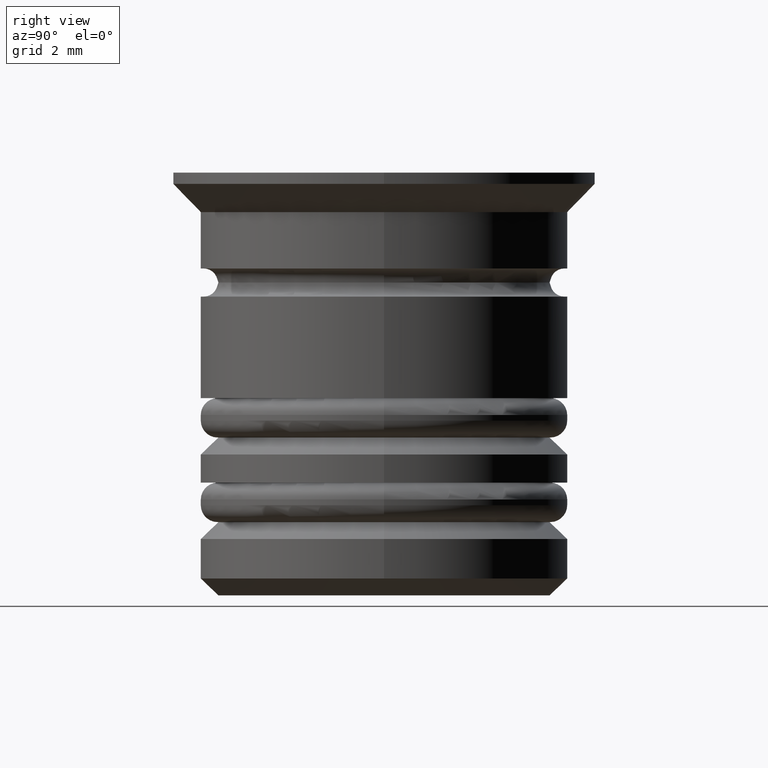
[diagram: clean part render]
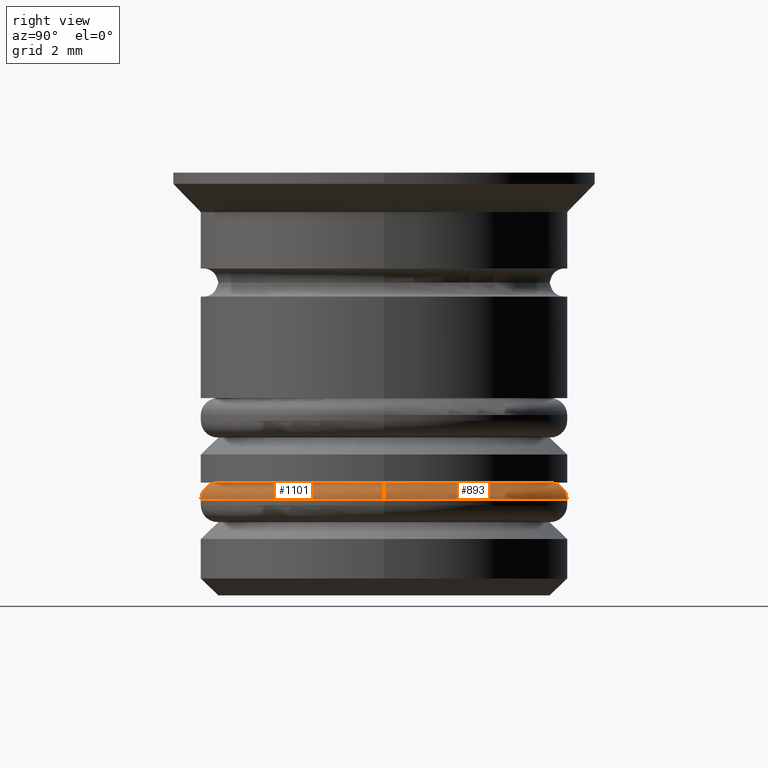
[diagram: same view with one multi-face feature highlighted, each face labeled with its STEP entity id]
A machine part, right view. The highlighted faces form ONE feature: a constant-radius fillet chain: 2 tangent blend faces with common blend radius 0.3 mm. The faces share edges in the B-rep.
Their STEP definitions:
[1] entity #893 (Torus):
#1 = VERTEX_POINT ( 'NONE', #342 ) ;
#23 = AXIS2_PLACEMENT_3D ( 'NONE', #771, #358, #1759 ) ;
#72 = CARTESIAN_POINT ( 'NONE',  ( -2.950000000000000178, 0.000000000000000000, -5.500000000000000000 ) ) ;
#93 = CARTESIAN_POINT ( 'NONE',  ( 0.000000000000000000, 0.000000000000000000, -5.799999999999999822 ) ) ;
#98 = ORIENTED_EDGE ( 'NONE', *, *, #273, .T. ) ;
#120 = CARTESIAN_POINT ( 'NONE',  ( 2.950000000000000178, 3.796405077356795411E-16, -5.500000000000000000 ) ) ;
#159 = ORIENTED_EDGE ( 'NONE', *, *, #257, .F. ) ;
#219 = VERTEX_POINT ( 'NONE', #72 ) ;
#231 = DIRECTION ( 'NONE',  ( -1.224646799147353207E-16, 1.000000000000000000, 0.000000000000000000 ) ) ;
#257 = EDGE_CURVE ( 'NONE', #1, #983, #1217, .T. ) ;
#273 = EDGE_CURVE ( 'NONE', #940, #983, #340, .T. ) ;
#340 = CIRCLE ( 'NONE', #1724, 0.2999999999999999334 ) ;
#342 = CARTESIAN_POINT ( 'NONE',  ( -3.250000000000000444, 3.980102097228898231E-16, -5.799999999999999822 ) ) ;
#358 = DIRECTION ( 'NONE',  ( -0.000000000000000000, -1.000000000000000000, -0.000000000000000000 ) ) ;
#387 = DIRECTION ( 'NONE',  ( 0.000000000000000000, 0.000000000000000000, -1.000000000000000000 ) ) ;
#417 = CIRCLE ( 'NONE', #1112, 2.950000000000000178 ) ;
#558 = CARTESIAN_POINT ( 'NONE',  ( 0.000000000000000000, 0.000000000000000000, -5.500000000000000000 ) ) ;
#594 = FACE_OUTER_BOUND ( 'NONE', #1001, .T. ) ;
#619 = AXIS2_PLACEMENT_3D ( 'NONE', #1480, #789, #1171 ) ;
#622 = CIRCLE ( 'NONE', #23, 0.2999999999999999334 ) ;
#726 = EDGE_CURVE ( 'NONE', #219, #1, #622, .T. ) ;
#771 = CARTESIAN_POINT ( 'NONE',  ( -2.950000000000000178, 0.000000000000000000, -5.799999999999999822 ) ) ;
#789 = DIRECTION ( 'NONE',  ( 0.000000000000000000, 0.000000000000000000, -1.000000000000000000 ) ) ;
#828 = CARTESIAN_POINT ( 'NONE',  ( 3.250000000000000444, 0.000000000000000000, -5.799999999999999822 ) ) ;
#893 = ADVANCED_FACE ( 'NONE', ( #594 ), #1492, .T. ) ;
#940 = VERTEX_POINT ( 'NONE', #120 ) ;
#983 = VERTEX_POINT ( 'NONE', #828 ) ;
#1001 = EDGE_LOOP ( 'NONE', ( #1276, #98, #159, #1403 ) ) ;
#1112 = AXIS2_PLACEMENT_3D ( 'NONE', #558, #1814, #1386 ) ;
#1152 = EDGE_CURVE ( 'NONE', #940, #219, #417, .T. ) ;
#1161 = AXIS2_PLACEMENT_3D ( 'NONE', #93, #387, #1526 ) ;
#1171 = DIRECTION ( 'NONE',  ( -1.000000000000000000, 0.000000000000000000, 0.000000000000000000 ) ) ;
#1217 = CIRCLE ( 'NONE', #619, 3.250000000000000444 ) ;
#1276 = ORIENTED_EDGE ( 'NONE', *, *, #1152, .F. ) ;
#1386 = DIRECTION ( 'NONE',  ( -1.000000000000000000, 0.000000000000000000, 0.000000000000000000 ) ) ;
#1403 = ORIENTED_EDGE ( 'NONE', *, *, #726, .F. ) ;
#1480 = CARTESIAN_POINT ( 'NONE',  ( 0.000000000000000000, 0.000000000000000000, -5.799999999999999822 ) ) ;
#1491 = CARTESIAN_POINT ( 'NONE',  ( 2.950000000000000178, 3.612708057484692097E-16, -5.799999999999999822 ) ) ;
#1492 = TOROIDAL_SURFACE ( 'NONE', #1161, 2.950000000000000178, 0.2999999999999999889 ) ;
#1526 = DIRECTION ( 'NONE',  ( -1.000000000000000000, 0.000000000000000000, 0.000000000000000000 ) ) ;
#1596 = DIRECTION ( 'NONE',  ( -1.000000000000000000, -1.224646799147353207E-16, 0.000000000000000000 ) ) ;
#1724 = AXIS2_PLACEMENT_3D ( 'NONE', #1491, #231, #1596 ) ;
#1759 = DIRECTION ( 'NONE',  ( 0.000000000000000000, 0.000000000000000000, -1.000000000000000000 ) ) ;
#1814 = DIRECTION ( 'NONE',  ( -0.000000000000000000, -0.000000000000000000, 1.000000000000000000 ) ) ;
[2] entity #1101 (Torus):
#1 = VERTEX_POINT ( 'NONE', #342 ) ;
#23 = AXIS2_PLACEMENT_3D ( 'NONE', #771, #358, #1759 ) ;
#72 = CARTESIAN_POINT ( 'NONE',  ( -2.950000000000000178, 0.000000000000000000, -5.500000000000000000 ) ) ;
#120 = CARTESIAN_POINT ( 'NONE',  ( 2.950000000000000178, 3.796405077356795411E-16, -5.500000000000000000 ) ) ;
#134 = AXIS2_PLACEMENT_3D ( 'NONE', #1812, #266, #1255 ) ;
#191 = ORIENTED_EDGE ( 'NONE', *, *, #273, .F. ) ;
#219 = VERTEX_POINT ( 'NONE', #72 ) ;
#231 = DIRECTION ( 'NONE',  ( -1.224646799147353207E-16, 1.000000000000000000, 0.000000000000000000 ) ) ;
#266 = DIRECTION ( 'NONE',  ( 0.000000000000000000, 0.000000000000000000, -1.000000000000000000 ) ) ;
#273 = EDGE_CURVE ( 'NONE', #940, #983, #340, .T. ) ;
#283 = AXIS2_PLACEMENT_3D ( 'NONE', #820, #1809, #673 ) ;
#340 = CIRCLE ( 'NONE', #1724, 0.2999999999999999334 ) ;
#342 = CARTESIAN_POINT ( 'NONE',  ( -3.250000000000000444, 3.980102097228898231E-16, -5.799999999999999822 ) ) ;
#346 = AXIS2_PLACEMENT_3D ( 'NONE', #1475, #784, #1788 ) ;
#358 = DIRECTION ( 'NONE',  ( -0.000000000000000000, -1.000000000000000000, -0.000000000000000000 ) ) ;
#414 = EDGE_CURVE ( 'NONE', #983, #1, #1188, .T. ) ;
#431 = ORIENTED_EDGE ( 'NONE', *, *, #414, .F. ) ;
#543 = EDGE_LOOP ( 'NONE', ( #191, #1140, #1145, #431 ) ) ;
#622 = CIRCLE ( 'NONE', #23, 0.2999999999999999334 ) ;
#673 = DIRECTION ( 'NONE',  ( -1.000000000000000000, 0.000000000000000000, 0.000000000000000000 ) ) ;
#685 = TOROIDAL_SURFACE ( 'NONE', #283, 2.950000000000000178, 0.2999999999999999889 ) ;
#713 = CIRCLE ( 'NONE', #346, 2.950000000000000178 ) ;
#726 = EDGE_CURVE ( 'NONE', #219, #1, #622, .T. ) ;
#771 = CARTESIAN_POINT ( 'NONE',  ( -2.950000000000000178, 0.000000000000000000, -5.799999999999999822 ) ) ;
#784 = DIRECTION ( 'NONE',  ( -0.000000000000000000, -0.000000000000000000, 1.000000000000000000 ) ) ;
#820 = CARTESIAN_POINT ( 'NONE',  ( 0.000000000000000000, 0.000000000000000000, -5.799999999999999822 ) ) ;
#828 = CARTESIAN_POINT ( 'NONE',  ( 3.250000000000000444, 0.000000000000000000, -5.799999999999999822 ) ) ;
#940 = VERTEX_POINT ( 'NONE', #120 ) ;
#957 = FACE_OUTER_BOUND ( 'NONE', #543, .T. ) ;
#983 = VERTEX_POINT ( 'NONE', #828 ) ;
#1101 = ADVANCED_FACE ( 'NONE', ( #957 ), #685, .T. ) ;
#1119 = EDGE_CURVE ( 'NONE', #219, #940, #713, .T. ) ;
#1140 = ORIENTED_EDGE ( 'NONE', *, *, #1119, .F. ) ;
#1145 = ORIENTED_EDGE ( 'NONE', *, *, #726, .T. ) ;
#1188 = CIRCLE ( 'NONE', #134, 3.250000000000000444 ) ;
#1255 = DIRECTION ( 'NONE',  ( -1.000000000000000000, 0.000000000000000000, 0.000000000000000000 ) ) ;
#1475 = CARTESIAN_POINT ( 'NONE',  ( 0.000000000000000000, 0.000000000000000000, -5.500000000000000000 ) ) ;
#1491 = CARTESIAN_POINT ( 'NONE',  ( 2.950000000000000178, 3.612708057484692097E-16, -5.799999999999999822 ) ) ;
#1596 = DIRECTION ( 'NONE',  ( -1.000000000000000000, -1.224646799147353207E-16, 0.000000000000000000 ) ) ;
#1724 = AXIS2_PLACEMENT_3D ( 'NONE', #1491, #231, #1596 ) ;
#1759 = DIRECTION ( 'NONE',  ( 0.000000000000000000, 0.000000000000000000, -1.000000000000000000 ) ) ;
#1788 = DIRECTION ( 'NONE',  ( -1.000000000000000000, 0.000000000000000000, 0.000000000000000000 ) ) ;
#1809 = DIRECTION ( 'NONE',  ( 0.000000000000000000, 0.000000000000000000, -1.000000000000000000 ) ) ;
#1812 = CARTESIAN_POINT ( 'NONE',  ( 0.000000000000000000, 0.000000000000000000, -5.799999999999999822 ) ) ;